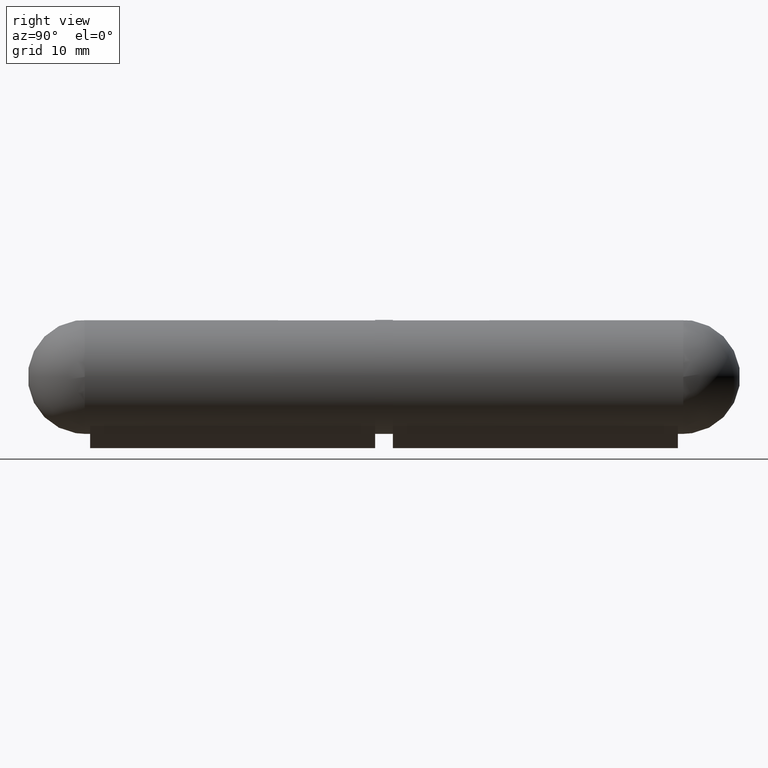
[diagram: clean part render]
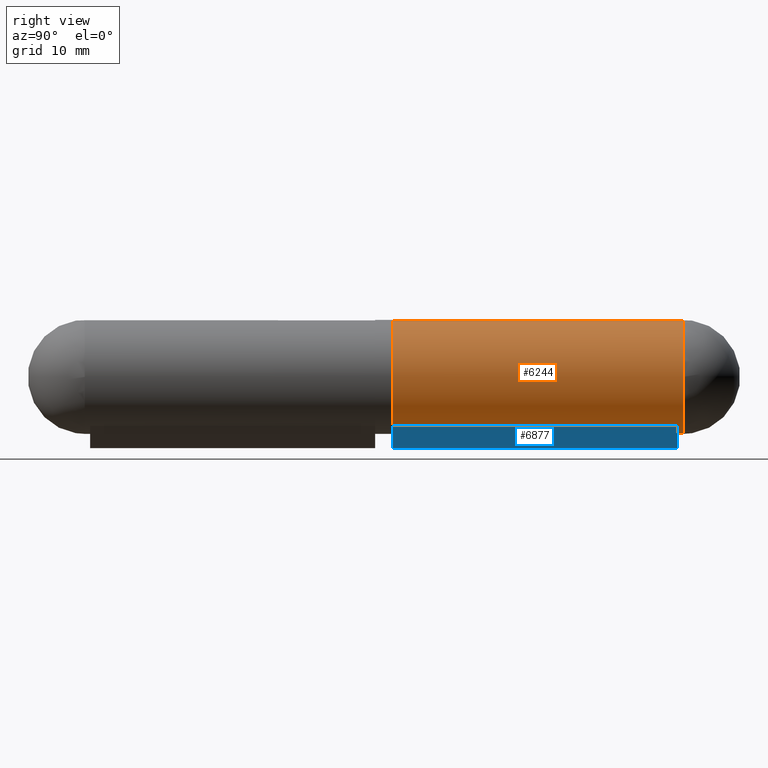
[diagram: same view with the hole feature highlighted: cylindrical wall and planar end face, labeled with their STEP entity ids]
A machine part, right view. The highlighted faces form one hole feature of diameter 16 mm: the cylindrical wall (entity #6244, orange) and its adjacent planar end face (entity #6877, blue) — they share a circular edge in the B-rep.
Wall:
#108 = EDGE_CURVE ( 'NONE', #7992, #2061, #6828, .T. ) ;
#441 = DIRECTION ( 'NONE',  ( 0.000000000000000000, 0.000000000000000000, -1.000000000000000000 ) ) ;
#778 = CARTESIAN_POINT ( 'NONE',  ( -4.093222977918994587, 8.750000000000000000, -6.873538073876943599 ) ) ;
#896 = FACE_OUTER_BOUND ( 'NONE', #9887, .T. ) ;
#1161 = EDGE_LOOP ( 'NONE', ( #3851, #11804, #5787, #8075 ) ) ;
#1214 = EDGE_CURVE ( 'NONE', #7772, #7772, #4209, .T. ) ;
#1520 = DIRECTION ( 'NONE',  ( 0.000000000000000000, 0.000000000000000000, 1.000000000000000000 ) ) ;
#1654 = CYLINDRICAL_SURFACE ( 'NONE', #9997, 8.000000000000000000 ) ;
#2061 = VERTEX_POINT ( 'NONE', #4497 ) ;
#2498 = DIRECTION ( 'NONE',  ( 0.000000000000000000, 1.000000000000000000, 0.000000000000000000 ) ) ;
#2901 = EDGE_CURVE ( 'NONE', #7078, #2061, #11904, .T. ) ;
#3281 = CARTESIAN_POINT ( 'NONE',  ( -4.093222977918994587, 8.750000000000000000, -6.873538073876943599 ) ) ;
#3380 = CARTESIAN_POINT ( 'NONE',  ( 4.093222977918994587, 8.750000000000000000, -6.873538073876943599 ) ) ;
#3477 = CARTESIAN_POINT ( 'NONE',  ( 0.000000000000000000, 8.000000000000000000, -8.000000000000000000 ) ) ;
#3650 = DIRECTION ( 'NONE',  ( 0.000000000000000000, 0.000000000000000000, -1.000000000000000000 ) ) ;
#3851 = ORIENTED_EDGE ( 'NONE', *, *, #108, .F. ) ;
#4209 = CIRCLE ( 'NONE', #8937, 8.000000000000000000 ) ;
#4497 = CARTESIAN_POINT ( 'NONE',  ( 4.093222977918994587, 48.75000000000000000, -6.873538073876943599 ) ) ;
#4709 = ORIENTED_EDGE ( 'NONE', *, *, #1214, .T. ) ;
#4712 = VECTOR ( 'NONE', #10182, 1000.000000000000000 ) ;
#5412 = DIRECTION ( 'NONE',  ( 0.000000000000000000, 1.000000000000000000, 0.000000000000000000 ) ) ;
#5676 = CARTESIAN_POINT ( 'NONE',  ( 0.000000000000000000, 48.75000000000000000, 0.000000000000000000 ) ) ;
#5787 = ORIENTED_EDGE ( 'NONE', *, *, #9069, .T. ) ;
#5903 = DIRECTION ( 'NONE',  ( 0.000000000000000000, 0.000000000000000000, 1.000000000000000000 ) ) ;
#6244 = ADVANCED_FACE ( 'NONE', ( #6734, #896 ), #1654, .T. ) ;
#6365 = CARTESIAN_POINT ( 'NONE',  ( 0.000000000000000000, 8.000000000000000000, 0.000000000000000000 ) ) ;
#6546 = AXIS2_PLACEMENT_3D ( 'NONE', #10469, #2498, #1520 ) ;
#6734 = FACE_OUTER_BOUND ( 'NONE', #1161, .T. ) ;
#6828 = CIRCLE ( 'NONE', #6546, 8.000000000000000000 ) ;
#7078 = VERTEX_POINT ( 'NONE', #9602 ) ;
#7139 = CIRCLE ( 'NONE', #9977, 8.000000000000000000 ) ;
#7299 = CARTESIAN_POINT ( 'NONE',  ( -4.093222977919000805, 48.75000000000000000, -6.873538073876939158 ) ) ;
#7492 = EDGE_CURVE ( 'NONE', #10346, #7992, #11525, .T. ) ;
#7772 = VERTEX_POINT ( 'NONE', #3477 ) ;
#7853 = DIRECTION ( 'NONE',  ( -0.000000000000000000, -1.000000000000000000, -0.000000000000000000 ) ) ;
#7992 = VERTEX_POINT ( 'NONE', #7299 ) ;
#8075 = ORIENTED_EDGE ( 'NONE', *, *, #2901, .T. ) ;
#8417 = DIRECTION ( 'NONE',  ( -0.000000000000000000, -1.000000000000000000, -0.000000000000000000 ) ) ;
#8937 = AXIS2_PLACEMENT_3D ( 'NONE', #6365, #11263, #441 ) ;
#9069 = EDGE_CURVE ( 'NONE', #10346, #7078, #7139, .T. ) ;
#9260 = VECTOR ( 'NONE', #5412, 1000.000000000000000 ) ;
#9602 = CARTESIAN_POINT ( 'NONE',  ( 4.093222977918994587, 8.750000000000000000, -6.873538073876943599 ) ) ;
#9887 = EDGE_LOOP ( 'NONE', ( #4709 ) ) ;
#9977 = AXIS2_PLACEMENT_3D ( 'NONE', #10738, #7853, #5903 ) ;
#9997 = AXIS2_PLACEMENT_3D ( 'NONE', #5676, #8417, #3650 ) ;
#10182 = DIRECTION ( 'NONE',  ( 0.000000000000000000, 1.000000000000000000, 0.000000000000000000 ) ) ;
#10346 = VERTEX_POINT ( 'NONE', #778 ) ;
#10469 = CARTESIAN_POINT ( 'NONE',  ( 0.000000000000000000, 48.75000000000000000, 0.000000000000000000 ) ) ;
#10738 = CARTESIAN_POINT ( 'NONE',  ( 0.000000000000000000, 8.750000000000000000, 0.000000000000000000 ) ) ;
#11263 = DIRECTION ( 'NONE',  ( 0.000000000000000000, 1.000000000000000000, 0.000000000000000000 ) ) ;
#11525 = LINE ( 'NONE', #3281, #4712 ) ;
#11804 = ORIENTED_EDGE ( 'NONE', *, *, #7492, .F. ) ;
#11904 = LINE ( 'NONE', #3380, #9260 ) ;
End face:
#33 = VERTEX_POINT ( 'NONE', #10294 ) ;
#778 = CARTESIAN_POINT ( 'NONE',  ( -4.093222977918994587, 8.750000000000000000, -6.873538073876943599 ) ) ;
#1375 = ORIENTED_EDGE ( 'NONE', *, *, #6535, .F. ) ;
#1659 = CARTESIAN_POINT ( 'NONE',  ( -1.000000000000000000, 8.750000000000000000, -10.00000000000000000 ) ) ;
#2721 = VERTEX_POINT ( 'NONE', #1659 ) ;
#3039 = ORIENTED_EDGE ( 'NONE', *, *, #3900, .T. ) ;
#3176 = CARTESIAN_POINT ( 'NONE',  ( -4.093222977918994587, 8.750000000000000000, -6.873538073876943599 ) ) ;
#3232 = EDGE_LOOP ( 'NONE', ( #1375, #12335, #3039, #9351 ) ) ;
#3281 = CARTESIAN_POINT ( 'NONE',  ( -4.093222977918994587, 8.750000000000000000, -6.873538073876943599 ) ) ;
#3512 = DIRECTION ( 'NONE',  ( -0.7033178510102879866, -0.000000000000000000, 0.7108755168454391482 ) ) ;
#3517 = VECTOR ( 'NONE', #3512, 1000.000000000000114 ) ;
#3819 = DIRECTION ( 'NONE',  ( 0.000000000000000000, 1.000000000000000000, 0.000000000000000000 ) ) ;
#3900 = EDGE_CURVE ( 'NONE', #2721, #10346, #11412, .T. ) ;
#3970 = FACE_OUTER_BOUND ( 'NONE', #3232, .T. ) ;
#4503 = CARTESIAN_POINT ( 'NONE',  ( -4.093222977918994587, 48.75000000000000000, -6.873538073876943599 ) ) ;
#4712 = VECTOR ( 'NONE', #10182, 1000.000000000000000 ) ;
#5362 = CARTESIAN_POINT ( 'NONE',  ( -4.093222977918994587, 8.750000000000000000, -6.873538073876943599 ) ) ;
#5373 = LINE ( 'NONE', #4503, #3517 ) ;
#5809 = EDGE_CURVE ( 'NONE', #2721, #33, #6549, .T. ) ;
#6091 = DIRECTION ( 'NONE',  ( -0.7108755168454391482, 0.000000000000000000, -0.7033178510102879866 ) ) ;
#6535 = EDGE_CURVE ( 'NONE', #33, #7992, #5373, .T. ) ;
#6549 = LINE ( 'NONE', #9715, #8235 ) ;
#6877 = ADVANCED_FACE ( 'NONE', ( #3970 ), #9992, .T. ) ;
#7186 = DIRECTION ( 'NONE',  ( -0.7033178510102879866, -0.000000000000000000, 0.7108755168454391482 ) ) ;
#7299 = CARTESIAN_POINT ( 'NONE',  ( -4.093222977919000805, 48.75000000000000000, -6.873538073876939158 ) ) ;
#7492 = EDGE_CURVE ( 'NONE', #10346, #7992, #11525, .T. ) ;
#7977 = DIRECTION ( 'NONE',  ( -0.7033178510102879866, 0.000000000000000000, 0.7108755168454391482 ) ) ;
#7992 = VERTEX_POINT ( 'NONE', #7299 ) ;
#8235 = VECTOR ( 'NONE', #3819, 1000.000000000000000 ) ;
#8668 = AXIS2_PLACEMENT_3D ( 'NONE', #3176, #6091, #7977 ) ;
#9351 = ORIENTED_EDGE ( 'NONE', *, *, #7492, .T. ) ;
#9390 = VECTOR ( 'NONE', #7186, 1000.000000000000114 ) ;
#9715 = CARTESIAN_POINT ( 'NONE',  ( -1.000000000000000000, 8.750000000000000000, -10.00000000000000000 ) ) ;
#9992 = PLANE ( 'NONE',  #8668 ) ;
#10182 = DIRECTION ( 'NONE',  ( 0.000000000000000000, 1.000000000000000000, 0.000000000000000000 ) ) ;
#10294 = CARTESIAN_POINT ( 'NONE',  ( -1.000000000000000000, 48.75000000000000000, -10.00000000000000000 ) ) ;
#10346 = VERTEX_POINT ( 'NONE', #778 ) ;
#11412 = LINE ( 'NONE', #5362, #9390 ) ;
#11525 = LINE ( 'NONE', #3281, #4712 ) ;
#12335 = ORIENTED_EDGE ( 'NONE', *, *, #5809, .F. ) ;